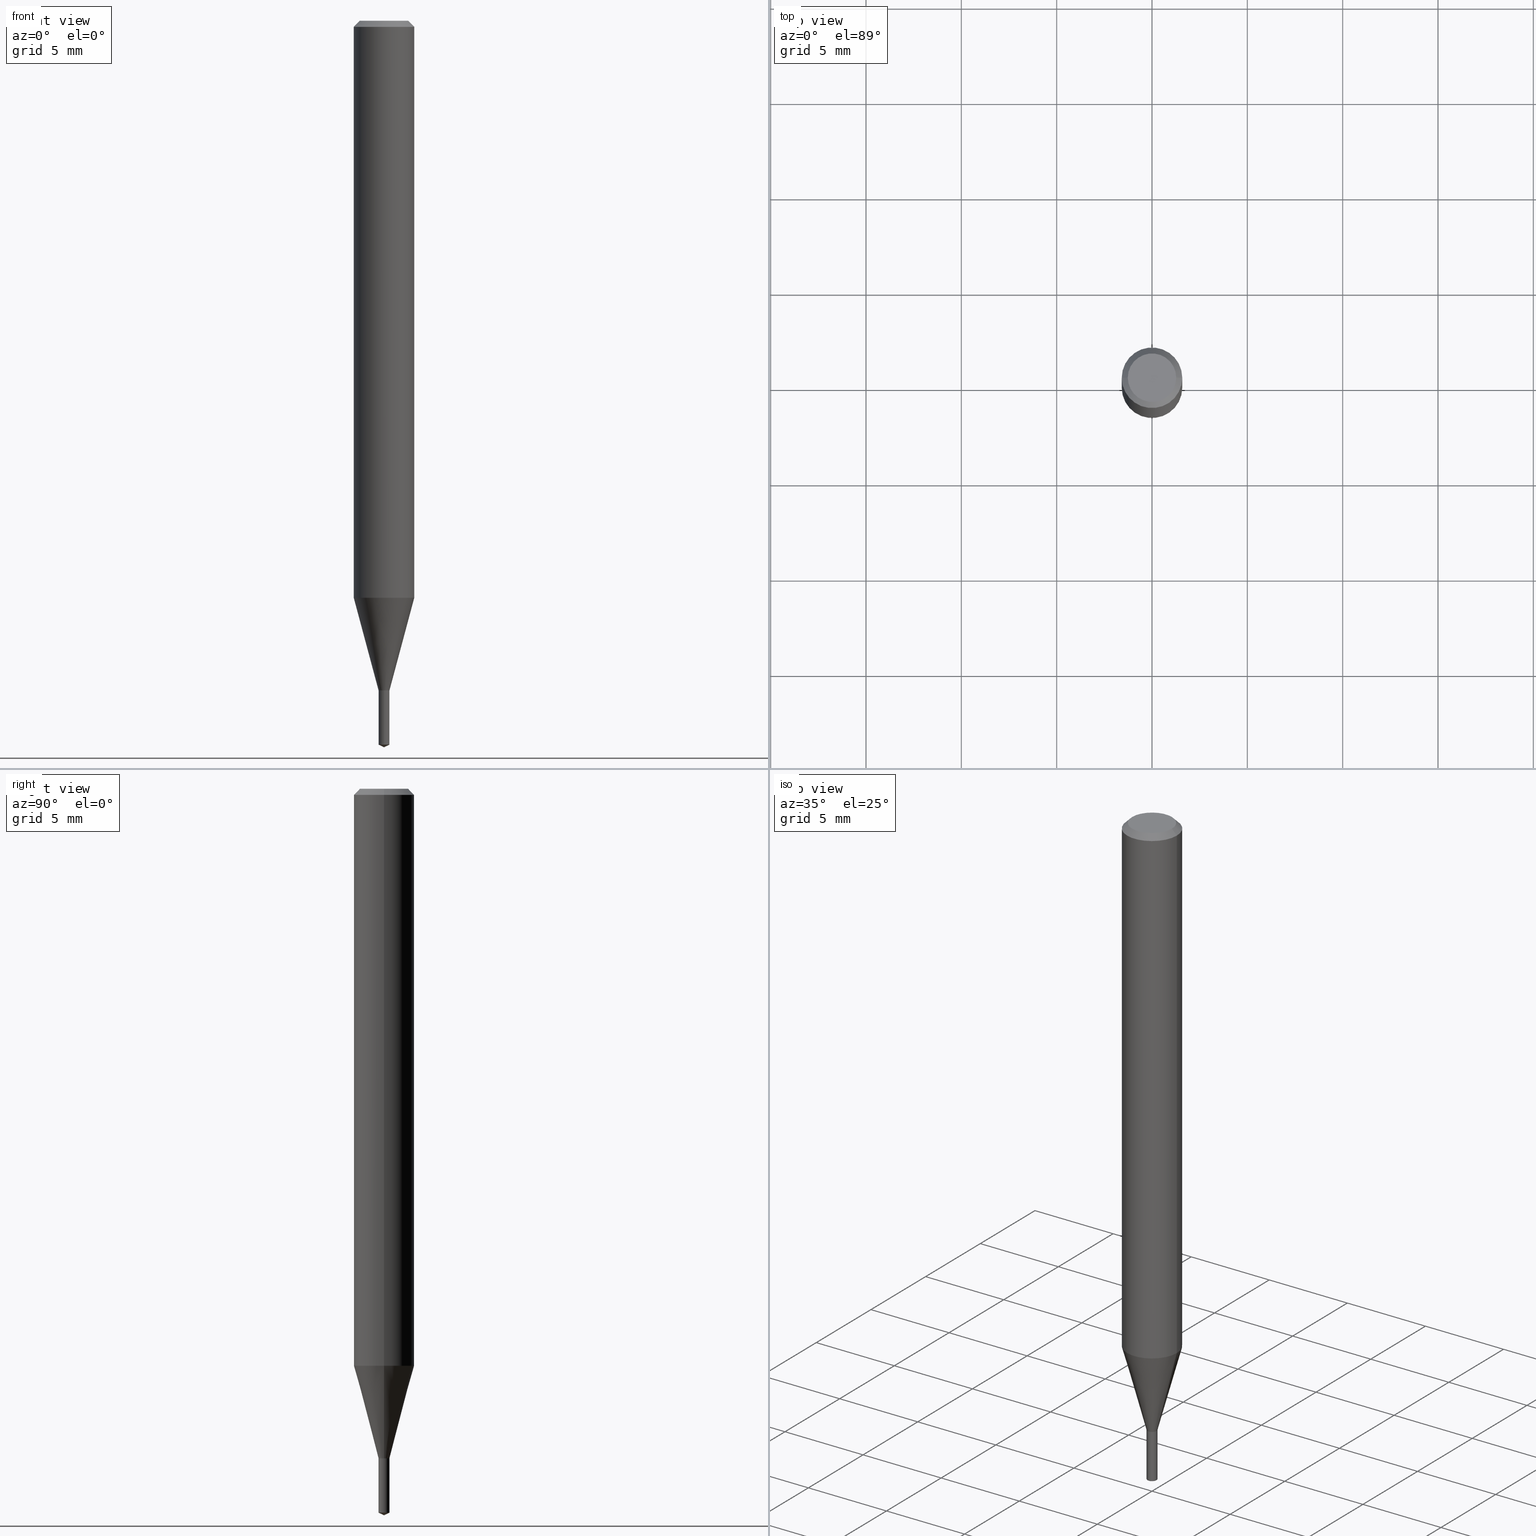
[diagram: canonical four-view strip — front | top / right | iso, engineering-drawing reading convention]
A machine part, canonical four-view strip (front | top / right | iso — engineering-drawing reading convention). The complete STEP part file that produces these views, byte-faithful:
ISO-10303-21;
HEADER;
FILE_DESCRIPTION (( 'STEP AP203' ),
    '1' );
FILE_NAME ('07128.STEP',
    '2024-04-23T19:37:20',
    ( '' ),
    ( '' ),
    'SwSTEP 2.0',
    'SolidWorks 2023',
    '' );
FILE_SCHEMA (( 'CONFIG_CONTROL_DESIGN' ));
ENDSEC;

DATA;
#1 = PRODUCT_DEFINITION_FORMATION_WITH_SPECIFIED_SOURCE ( 'ANY', '', #239, .NOT_KNOWN. ) ;
#2 = AXIS2_PLACEMENT_3D ( 'NONE', #345, #79, #148 ) ;
#3 = AXIS2_PLACEMENT_3D ( 'NONE', #112, #71, #380 ) ;
#4 = CARTESIAN_POINT ( 'NONE',  ( -8.265746106709734507E-48, 1.180129479067563789E-33, 3.380025165646692144E-19 ) ) ;
#5 = VERTEX_POINT ( 'NONE', #419 ) ;
#6 = DIRECTION ( 'NONE',  ( -2.445468806185136597E-29, 3.491481338843145583E-15, 1.000000000000000000 ) ) ;
#7 = FACE_OUTER_BOUND ( 'NONE', #415, .T. ) ;
#8 = LINE ( 'NONE', #307, #249 ) ;
#9 = DIRECTION ( 'NONE',  ( -6.982962677686265133E-15, -1.000000000000000000, 0.000000000000000000 ) ) ;
#10 = ADVANCED_FACE ( 'NONE', ( #7 ), #133, .T. ) ;
#11 = CLOSED_SHELL ( 'NONE', ( #288, #395, #474, #115, #143, #64, #416, #195, #10, #283, #91, #131 ) ) ;
#12 = CARTESIAN_POINT ( 'NONE',  ( -4.132873053354867254E-48, 5.900647395337818946E-34, 1.690012582823346072E-19 ) ) ;
#13 = LINE ( 'NONE', #272, #472 ) ;
#14 = FACE_OUTER_BOUND ( 'NONE', #39, .T. ) ;
#15 = APPROVAL_ROLE ( '' ) ;
#16 = CONICAL_SURFACE ( 'NONE', #300, 84.42940631927274353, 1.134464013796308679 ) ;
#17 = APPROVAL_ROLE ( '' ) ;
#18 = AXIS2_PLACEMENT_3D ( 'NONE', #205, #471, #58 ) ;
#19 = DATE_AND_TIME ( #202, #325 ) ;
#20 = ADVANCED_FACE ( 'NONE', ( #223 ), #78, .T. ) ;
#21 = AXIS2_PLACEMENT_3D ( 'NONE', #338, #6, #486 ) ;
#22 = ADVANCED_BREP_SHAPE_REPRESENTATION ( '07128', ( #111, #281, #184 ), #386 ) ;
#23 = DIRECTION ( 'NONE',  ( -2.445468806185136597E-29, 3.491481338843145583E-15, 1.000000000000000000 ) ) ;
#24 = DIRECTION ( 'NONE',  ( -2.445468806185136597E-29, 3.491481338843145583E-15, 1.000000000000000000 ) ) ;
#25 = PLANE ( 'NONE',  #441 ) ;
#26 = CARTESIAN_POINT ( 'NONE',  ( 3.654385508097513351E-29, -5.220321946358035129E-15, -1.494754038845756305 ) ) ;
#27 = EDGE_CURVE ( 'NONE', #70, #478, #196, .T. ) ;
#28 = VERTEX_POINT ( 'NONE', #456 ) ;
#29 = ORIENTED_EDGE ( 'NONE', *, *, #346, .F. ) ;
#30 = LINE ( 'NONE', #183, #208 ) ;
#31 = VERTEX_POINT ( 'NONE', #74 ) ;
#32 = DIRECTION ( 'NONE',  ( 1.000000000000000000, -6.982962677686266711E-15, 4.876176775795935793E-29 ) ) ;
#33 = CC_DESIGN_PERSON_AND_ORGANIZATION_ASSIGNMENT ( #129, #277, ( #1 ) ) ;
#34 = AXIS2_PLACEMENT_3D ( 'NONE', #490, #375, #255 ) ;
#35 = DIRECTION ( 'NONE',  ( -2.445468806185136597E-29, 3.491481338843145583E-15, 1.000000000000000000 ) ) ;
#36 = ORIENTED_EDGE ( 'NONE', *, *, #489, .T. ) ;
#37 = EDGE_LOOP ( 'NONE', ( #413, #107, #161 ) ) ;
#38 = ORIENTED_EDGE ( 'NONE', *, *, #378, .T. ) ;
#39 = EDGE_LOOP ( 'NONE', ( #113, #147 ) ) ;
#40 = LINE ( 'NONE', #383, #55 ) ;
#41 = CIRCLE ( 'NONE', #56, 0.01124999999999999958 ) ;
#42 = ORIENTED_EDGE ( 'NONE', *, *, #75, .T. ) ;
#43 = AXIS2_PLACEMENT_3D ( 'NONE', #253, #35, #482 ) ;
#44 = CIRCLE ( 'NONE', #34, 0.01075000000000000087 ) ;
#45 = DIRECTION ( 'NONE',  ( -2.445468806185136877E-29, 3.491481338843145188E-15, 1.000000000000000000 ) ) ;
#46 = DIRECTION ( 'NONE',  ( 6.439704144417008265E-15, 0.9063077870366490485, 0.4226182617407012732 ) ) ;
#47 = EDGE_CURVE ( 'NONE', #257, #263, #264, .T. ) ;
#48 = DIRECTION ( 'NONE',  ( -6.982962677686265133E-15, -1.000000000000000000, 0.000000000000000000 ) ) ;
#49 = AXIS2_PLACEMENT_3D ( 'NONE', #334, #399, #256 ) ;
#50 = LINE ( 'NONE', #273, #199 ) ;
#51 = EDGE_CURVE ( 'NONE', #73, #301, #13, .T. ) ;
#52 = DATE_AND_TIME ( #488, #232 ) ;
#53 = APPROVAL_STATUS ( 'not_yet_approved' ) ;
#54 = ORIENTED_EDGE ( 'NONE', *, *, #228, .T. ) ;
#55 = VECTOR ( 'NONE', #424, 39.37007874015748143 ) ;
#56 = AXIS2_PLACEMENT_3D ( 'NONE', #304, #420, #125 ) ;
#57 = PERSON_AND_ORGANIZATION_ROLE ( 'creator' ) ;
#58 = DIRECTION ( 'NONE',  ( 1.000000000000000000, -6.982962677686266711E-15, 4.876176775795935793E-29 ) ) ;
#59 = EDGE_CURVE ( 'NONE', #5, #102, #192, .T. ) ;
#60 = CARTESIAN_POINT ( 'NONE',  ( -7.855833012394210890E-17, -0.01125000000000405016, -1.160000000000000142 ) ) ;
#61 = CIRCLE ( 'NONE', #426, 0.01124999999999999958 ) ;
#62 = AXIS2_PLACEMENT_3D ( 'NONE', #168, #179, #234 ) ;
#63 = CYLINDRICAL_SURFACE ( 'NONE', #370, 0.01124999999999999958 ) ;
#64 = ADVANCED_FACE ( 'NONE', ( #331 ), #360, .F. ) ;
#65 = DIRECTION ( 'NONE',  ( -6.982962677686265133E-15, -1.000000000000000000, 0.000000000000000000 ) ) ;
#66 = ORIENTED_EDGE ( 'NONE', *, *, #299, .F. ) ;
#67 = SECURITY_CLASSIFICATION ( '', '', #287 ) ;
#68 = DIRECTION ( 'NONE',  ( 1.000000000000000000, -6.982962677686224901E-15, 0.000000000000000000 ) ) ;
#69 = ORIENTED_EDGE ( 'NONE', *, *, #423, .T. ) ;
#70 = VERTEX_POINT ( 'NONE', #190 ) ;
#71 = DIRECTION ( 'NONE',  ( -2.445468806185136597E-29, 3.491481338843145583E-15, 1.000000000000000000 ) ) ;
#72 = CONICAL_SURFACE ( 'NONE', #62, 0.06250000000000000000, 0.7853981633974452814 ) ;
#73 = VERTEX_POINT ( 'NONE', #296 ) ;
#74 = CARTESIAN_POINT ( 'NONE',  ( -0.01124999999999999958, -4.357911297963569388E-15, -1.382600000000000273 ) ) ;
#75 = EDGE_CURVE ( 'NONE', #478, #70, #258, .T. ) ;
#76 = DIRECTION ( 'NONE',  ( 1.000000000000000000, -6.982962677686265133E-15, 0.000000000000000000 ) ) ;
#77 = DIRECTION ( 'NONE',  ( -2.438088387897960049E-29, 3.491481338843145188E-15, 1.000000000000000000 ) ) ;
#78 = CYLINDRICAL_SURFACE ( 'NONE', #122, 0.01124999999999999958 ) ;
#79 = DIRECTION ( 'NONE',  ( 2.445468806185136597E-29, -3.491481338843145583E-15, -1.000000000000000000 ) ) ;
#80 = APPROVAL ( #53, 'UNSPECIFIED' ) ;
#81 = APPROVAL_PERSON_ORGANIZATION ( #389, #314, #384 ) ;
#82 = DIRECTION ( 'NONE',  ( 1.000000000000000000, -6.982962677686270655E-15, 0.000000000000000000 ) ) ;
#83 = AXIS2_PLACEMENT_3D ( 'NONE', #367, #181, #483 ) ;
#84 = PLANE ( 'NONE',  #317 ) ;
#85 = LINE ( 'NONE', #262, #189 ) ;
#86 = APPLICATION_PROTOCOL_DEFINITION ( 'international standard', 'config_control_design', 1994, #319 ) ;
#87 = ADVANCED_FACE ( 'NONE', ( #244 ), #63, .T. ) ;
#88 = FACE_OUTER_BOUND ( 'NONE', #180, .T. ) ;
#89 = CARTESIAN_POINT ( 'NONE',  ( 3.663772194095157954E-29, -5.243567474203848232E-15, -1.500000000000000222 ) ) ;
#90 = DIRECTION ( 'NONE',  ( 1.000000000000000000, -6.982962677686266711E-15, 4.876176775795935793E-29 ) ) ;
#91 = ADVANCED_FACE ( 'NONE', ( #293 ), #25, .F. ) ;
#92 = AXIS2_PLACEMENT_3D ( 'NONE', #294, #397, #366 ) ;
#93 = CC_DESIGN_APPROVAL ( #462, ( #1 ) ) ;
#94 = LINE ( 'NONE', #479, #465 ) ;
#95 = CARTESIAN_POINT ( 'NONE',  ( 0.06250000000000000000, -4.724246415962602840E-16, -0.01250000000000008223 ) ) ;
#96 = ORIENTED_EDGE ( 'NONE', *, *, #59, .F. ) ;
#97 = CONICAL_SURFACE ( 'NONE', #200, 0.01075000000000000087, 0.7853981633974119747 ) ;
#98 = CARTESIAN_POINT ( 'NONE',  ( -8.265746106709734507E-48, 1.180129479067563789E-33, 3.380025165646692144E-19 ) ) ;
#99 = ORIENTED_EDGE ( 'NONE', *, *, #406, .F. ) ;
#100 = ORIENTED_EDGE ( 'NONE', *, *, #27, .F. ) ;
#101 = CARTESIAN_POINT ( 'NONE',  ( -0.06250000000000000000, -1.657489963210050197E-15, -0.01250000000000008223 ) ) ;
#102 = VERTEX_POINT ( 'NONE', #447 ) ;
#103 = CC_DESIGN_PERSON_AND_ORGANIZATION_ASSIGNMENT ( #279, #429, ( #239 ) ) ;
#104 = APPROVAL_PERSON_ORGANIZATION ( #322, #462, #15 ) ;
#105 = ORIENTED_EDGE ( 'NONE', *, *, #75, .F. ) ;
#106 = FACE_OUTER_BOUND ( 'NONE', #372, .T. ) ;
#107 = ORIENTED_EDGE ( 'NONE', *, *, #51, .T. ) ;
#108 = ORIENTED_EDGE ( 'NONE', *, *, #434, .T. ) ;
#109 = ORIENTED_EDGE ( 'NONE', *, *, #136, .T. ) ;
#110 = ORIENTED_EDGE ( 'NONE', *, *, #155, .T. ) ;
#111 = MANIFOLD_SOLID_BREP ( 'Body-Move/Copy2[1]', #354 ) ;
#112 = CARTESIAN_POINT ( 'NONE',  ( 3.056836007731440977E-31, -4.364351673553961068E-17, -0.01250000000000008223 ) ) ;
#113 = ORIENTED_EDGE ( 'NONE', *, *, #355, .T. ) ;
#114 = DIRECTION ( 'NONE',  ( -2.445468806185136877E-29, 3.491481338843145188E-15, 1.000000000000000000 ) ) ;
#115 = ADVANCED_FACE ( 'NONE', ( #137 ), #326, .T. ) ;
#116 = ORIENTED_EDGE ( 'NONE', *, *, #434, .F. ) ;
#117 = ORIENTED_EDGE ( 'NONE', *, *, #312, .F. ) ;
#118 = CARTESIAN_POINT ( 'NONE',  ( -0.01075000000000000087, -3.971085781789727760E-15, -1.160000000000000142 ) ) ;
#119 = FACE_OUTER_BOUND ( 'NONE', #449, .T. ) ;
#120 = AXIS2_PLACEMENT_3D ( 'NONE', #438, #435, #236 ) ;
#121 = VERTEX_POINT ( 'NONE', #171 ) ;
#122 = AXIS2_PLACEMENT_3D ( 'NONE', #356, #303, #48 ) ;
#123 = CC_DESIGN_PERSON_AND_ORGANIZATION_ASSIGNMENT ( #284, #328, ( #67 ) ) ;
#124 = CIRCLE ( 'NONE', #276, 0.04999999999999999584 ) ;
#125 = DIRECTION ( 'NONE',  ( 1.000000000000000000, -6.982962677686224901E-15, 0.000000000000000000 ) ) ;
#126 = ORIENTED_EDGE ( 'NONE', *, *, #430, .T. ) ;
#127 = DIRECTION ( 'NONE',  ( -2.445468806185136597E-29, 3.491481338843145583E-15, 1.000000000000000000 ) ) ;
#128 = VECTOR ( 'NONE', #45, 39.37007874015748143 ) ;
#129 = PERSON_AND_ORGANIZATION ( #475, #145 ) ;
#130 = CARTESIAN_POINT ( 'NONE',  ( -0.06250000000000013878, -3.715425619534625420E-15, -1.191332396112100511 ) ) ;
#131 = ADVANCED_FACE ( 'NONE', ( #347 ), #450, .T. ) ;
#132 = VERTEX_POINT ( 'NONE', #101 ) ;
#133 = CONICAL_SURFACE ( 'NONE', #2, 0.06250000000000000000, 0.7853981633974452814 ) ;
#134 = COORDINATED_UNIVERSAL_TIME_OFFSET ( 5, 0, .BEHIND. ) ;
#135 =( NAMED_UNIT ( * ) PLANE_ANGLE_UNIT ( ) SI_UNIT ( $, .RADIAN. ) );
#136 = EDGE_CURVE ( 'NONE', #242, #149, #61, .T. ) ;
#137 = FACE_OUTER_BOUND ( 'NONE', #175, .T. ) ;
#138 = VECTOR ( 'NONE', #250, 39.37007874015748143 ) ;
#139 = DIRECTION ( 'NONE',  ( -2.442514796063438542E-29, 3.495711649469232155E-15, 1.000000000000000000 ) ) ;
#140 = FACE_OUTER_BOUND ( 'NONE', #261, .T. ) ;
#141 = ORIENTED_EDGE ( 'NONE', *, *, #222, .T. ) ;
#142 = ORIENTED_EDGE ( 'NONE', *, *, #186, .F. ) ;
#143 = ADVANCED_FACE ( 'NONE', ( #119 ), #437, .F. ) ;
#144 = EDGE_LOOP ( 'NONE', ( #444, #405, #206, #403 ) ) ;
#145 = ORGANIZATION ( 'UNSPECIFIED', 'UNSPECIFIED', '' ) ;
#146 = DIRECTION ( 'NONE',  ( 1.000000000000000000, -6.982962677686265922E-15, 4.876194921942043128E-29 ) ) ;
#147 = ORIENTED_EDGE ( 'NONE', *, *, #299, .T. ) ;
#148 = DIRECTION ( 'NONE',  ( -1.000000000000000000, 6.982962677686266711E-15, 0.000000000000000000 ) ) ;
#149 = VERTEX_POINT ( 'NONE', #60 ) ;
#150 = CC_DESIGN_DATE_AND_TIME_ASSIGNMENT ( #52, #309, ( #67 ) ) ;
#151 = ORIENTED_EDGE ( 'NONE', *, *, #240, .F. ) ;
#152 = APPLICATION_CONTEXT ( 'configuration controlled 3d designs of mechanical parts and assemblies' ) ;
#153 = FACE_OUTER_BOUND ( 'NONE', #37, .T. ) ;
#154 = ORIENTED_EDGE ( 'NONE', *, *, #240, .T. ) ;
#155 = EDGE_CURVE ( 'NONE', #214, #102, #94, .T. ) ;
#156 = ORIENTED_EDGE ( 'NONE', *, *, #387, .T. ) ;
#157 = DATE_AND_TIME ( #473, #282 ) ;
#158 = DIRECTION ( 'NONE',  ( -6.982962677686266711E-15, -1.000000000000000000, 3.520397390770520529E-15 ) ) ;
#159 = CALENDAR_DATE ( 2024, 23, 4 ) ;
#160 = DIRECTION ( 'NONE',  ( -2.442514796063438262E-29, 3.495711649469231760E-15, 1.000000000000000000 ) ) ;
#161 = ORIENTED_EDGE ( 'NONE', *, *, #222, .F. ) ;
#162 = AXIS2_PLACEMENT_3D ( 'NONE', #174, #407, #330 ) ;
#163 = LENGTH_MEASURE_WITH_UNIT ( LENGTH_MEASURE( 0.02539999999999999897 ), #235 );
#164 = CC_DESIGN_PERSON_AND_ORGANIZATION_ASSIGNMENT ( #286, #57, ( #460 ) ) ;
#165 = COORDINATED_UNIVERSAL_TIME_OFFSET ( 5, 0, .BEHIND. ) ;
#166 = FACE_OUTER_BOUND ( 'NONE', #454, .T. ) ;
#167 = DATE_TIME_ROLE ( 'creation_date' ) ;
#168 = CARTESIAN_POINT ( 'NONE',  ( 3.056836007731440977E-31, -4.364351673553961068E-17, -0.01250000000000008223 ) ) ;
#169 = EDGE_CURVE ( 'NONE', #263, #102, #245, .T. ) ;
#170 = CARTESIAN_POINT ( 'NONE',  ( 0.000000000000000000, 0.000000000000000000, 0.000000000000000000 ) ) ;
#171 = CARTESIAN_POINT ( 'NONE',  ( -7.855833012393393679E-17, -0.01125000000000522284, -1.494754038845756305 ) ) ;
#172 = MECHANICAL_CONTEXT ( 'NONE', #152, 'mechanical' ) ;
#173 = DIRECTION ( 'NONE',  ( -2.445468806185136597E-29, 3.491481338843145583E-15, 1.000000000000000000 ) ) ;
#174 = CARTESIAN_POINT ( 'NONE',  ( 3.654385508097513351E-29, -5.220321946358035129E-15, -1.494754038845756305 ) ) ;
#175 = EDGE_LOOP ( 'NONE', ( #469, #212, #100, #298 ) ) ;
#176 = CARTESIAN_POINT ( 'NONE',  ( 2.836743815174758520E-29, -4.050118353058049996E-15, -1.160000000000000142 ) ) ;
#177 = DIRECTION ( 'NONE',  ( -2.442514796063438542E-29, 3.495711649469232155E-15, 1.000000000000000000 ) ) ;
#178 = EDGE_LOOP ( 'NONE', ( #400, #376, #29, #259 ) ) ;
#179 = DIRECTION ( 'NONE',  ( 2.445468806185136597E-29, -3.491481338843145583E-15, -1.000000000000000000 ) ) ;
#180 = EDGE_LOOP ( 'NONE', ( #66, #54, #126, #99 ) ) ;
#181 = DIRECTION ( 'NONE',  ( -2.445468806185136597E-29, 3.491481338843145583E-15, 1.000000000000000000 ) ) ;
#182 = ORIENTED_EDGE ( 'NONE', *, *, #27, .T. ) ;
#183 = CARTESIAN_POINT ( 'NONE',  ( -0.06250000000000000000, 3.927916506198521080E-16, -0.01250000000000008223 ) ) ;
#184 = AXIS2_PLACEMENT_3D ( 'NONE', #170, #207, #363 ) ;
#185 = CIRCLE ( 'NONE', #358, 0.04999999999999999584 ) ;
#186 = EDGE_CURVE ( 'NONE', #132, #28, #398, .T. ) ;
#187 = ORIENTED_EDGE ( 'NONE', *, *, #251, .T. ) ;
#188 = PLANE ( 'NONE',  #361 ) ;
#189 = VECTOR ( 'NONE', #160, 39.37007874015748143 ) ;
#190 = CARTESIAN_POINT ( 'NONE',  ( 0.06250000000000013878, -4.595949996740082072E-15, -1.191332396112100511 ) ) ;
#191 = LINE ( 'NONE', #318, #484 ) ;
#192 = LINE ( 'NONE', #349, #128 ) ;
#193 = CARTESIAN_POINT ( 'NONE',  ( -0.01124999999999999958, 7.993605777301126795E-17, -5.533801976536768899E-31 ) ) ;
#194 = DIRECTION ( 'NONE',  ( -2.445468806185136877E-29, 3.491481338843145188E-15, 1.000000000000000000 ) ) ;
#195 = ADVANCED_FACE ( 'NONE', ( #359 ), #401, .T. ) ;
#196 = CIRCLE ( 'NONE', #394, 0.06250000000000013878 ) ;
#197 = DIRECTION ( 'NONE',  ( -2.445468806185136597E-29, 3.491481338843145583E-15, 1.000000000000000000 ) ) ;
#198 = EDGE_CURVE ( 'NONE', #214, #257, #44, .T. ) ;
#199 = VECTOR ( 'NONE', #194, 39.37007874015748143 ) ;
#200 = AXIS2_PLACEMENT_3D ( 'NONE', #382, #127, #76 ) ;
#201 = DIRECTION ( 'NONE',  ( -2.445468806185136597E-29, 3.491481338843145583E-15, 1.000000000000000000 ) ) ;
#202 = CALENDAR_DATE ( 2024, 23, 4 ) ;
#203 = DIRECTION ( 'NONE',  ( -6.328713451373353601E-15, -0.9063077870366461619, 0.4226182617407076014 ) ) ;
#204 = DIRECTION ( 'NONE',  ( -2.445468806185136597E-29, 3.491481338843145583E-15, 1.000000000000000000 ) ) ;
#205 = CARTESIAN_POINT ( 'NONE',  ( 0.000000000000000000, 0.000000000000000000, 0.000000000000000000 ) ) ;
#206 = ORIENTED_EDGE ( 'NONE', *, *, #59, .T. ) ;
#207 = DIRECTION ( 'NONE',  ( 0.000000000000000000, 0.000000000000000000, 1.000000000000000000 ) ) ;
#208 = VECTOR ( 'NONE', #396, 39.37007874015748143 ) ;
#209 = ORIENTED_EDGE ( 'NONE', *, *, #169, .F. ) ;
#210 = PRODUCT_DEFINITION_SHAPE ( 'NONE', 'NONE',  #460 ) ;
#211 = CALENDAR_DATE ( 2024, 23, 4 ) ;
#212 = ORIENTED_EDGE ( 'NONE', *, *, #275, .T. ) ;
#213 = DIRECTION ( 'NONE',  ( -2.445468806185136597E-29, 3.491481338843145583E-15, 1.000000000000000000 ) ) ;
#214 = VERTEX_POINT ( 'NONE', #480 ) ;
#215 = DESIGN_CONTEXT ( 'detailed design', #319, 'design' ) ;
#216 = ORIENTED_EDGE ( 'NONE', *, *, #228, .F. ) ;
#217 = AXIS2_PLACEMENT_3D ( 'NONE', #392, #201, #327 ) ;
#218 = CONICAL_SURFACE ( 'NONE', #343, 0.01124999999999999958, 0.2617993877991569573 ) ;
#219 = CARTESIAN_POINT ( 'NONE',  ( -0.01075000000000000087, -3.973735008963838961E-15, -1.160000000000000142 ) ) ;
#220 = DATE_AND_TIME ( #159, #274 ) ;
#221 = CARTESIAN_POINT ( 'NONE',  ( 7.993605777304787603E-17, 0.01124999999999594900, -1.160000000000000142 ) ) ;
#222 = EDGE_CURVE ( 'NONE', #121, #301, #231, .T. ) ;
#223 = FACE_OUTER_BOUND ( 'NONE', #487, .T. ) ;
#224 = CARTESIAN_POINT ( 'NONE',  ( 0.04999999999999999584, -4.077247707424184212E-16, 3.380025165673154903E-19 ) ) ;
#225 = AXIS2_PLACEMENT_3D ( 'NONE', #369, #23, #402 ) ;
#226 = VECTOR ( 'NONE', #265, 39.37007874015748854 ) ;
#227 = ORIENTED_EDGE ( 'NONE', *, *, #339, .F. ) ;
#228 = EDGE_CURVE ( 'NONE', #252, #28, #476, .T. ) ;
#229 = CARTESIAN_POINT ( 'NONE',  ( -9.249480099918094755E-28, 1.323877825786118664E-13, 37.87007874015748143 ) ) ;
#230 = PERSON_AND_ORGANIZATION ( #475, #145 ) ;
#231 = CIRCLE ( 'NONE', #162, 0.01125000000000000132 ) ;
#232 = LOCAL_TIME ( 15, 37, 20.00000000000000000, #414 ) ;
#233 = VECTOR ( 'NONE', #381, 39.37007874015748143 ) ;
#234 = DIRECTION ( 'NONE',  ( -1.000000000000000000, 6.982962677686266711E-15, 0.000000000000000000 ) ) ;
#235 =( LENGTH_UNIT ( ) NAMED_UNIT ( * ) SI_UNIT ( $, .METRE. ) );
#236 = DIRECTION ( 'NONE',  ( 1.000000000000000000, -6.982962677686269077E-15, 0.000000000000000000 ) ) ;
#237 =( CONVERSION_BASED_UNIT ( 'INCH', #163 ) LENGTH_UNIT ( ) NAMED_UNIT ( #371 ) );
#238 = CARTESIAN_POINT ( 'NONE',  ( 0.000000000000000000, 0.000000000000000000, 0.000000000000000000 ) ) ;
#239 = PRODUCT ( '07128', '07128', '', ( #172 ) ) ;
#240 = EDGE_CURVE ( 'NONE', #31, #5, #41, .T. ) ;
#241 = PERSON_AND_ORGANIZATION_ROLE ( 'creator' ) ;
#242 = VERTEX_POINT ( 'NONE', #221 ) ;
#243 = EDGE_LOOP ( 'NONE', ( #116, #348, #69, #451 ) ) ;
#244 = FACE_OUTER_BOUND ( 'NONE', #243, .T. ) ;
#245 = CIRCLE ( 'NONE', #120, 0.01124999999999999958 ) ;
#246 = DIRECTION ( 'NONE',  ( -2.442514796063438542E-29, 3.495711649469232155E-15, 1.000000000000000000 ) ) ;
#247 = CC_DESIGN_APPROVAL ( #80, ( #460 ) ) ;
#248 = AXIS2_PLACEMENT_3D ( 'NONE', #238, #173, #90 ) ;
#249 = VECTOR ( 'NONE', #270, 39.37007874015748854 ) ;
#250 = DIRECTION ( 'NONE',  ( 0.7071067811865453523, -7.319954787623248157E-15, -0.7071067811865496822 ) ) ;
#251 = EDGE_CURVE ( 'NONE', #478, #132, #40, .T. ) ;
#252 = VERTEX_POINT ( 'NONE', #224 ) ;
#253 = CARTESIAN_POINT ( 'NONE',  ( 2.913366212489936565E-29, -4.159514829384688825E-15, -1.191332396112100511 ) ) ;
#254 = EDGE_LOOP ( 'NONE', ( #408, #36, #227 ) ) ;
#255 = DIRECTION ( 'NONE',  ( 1.000000000000000000, -6.982962677686265133E-15, 0.000000000000000000 ) ) ;
#256 = DIRECTION ( 'NONE',  ( 1.000000000000000000, -6.982962677686266711E-15, 4.876176775795935793E-29 ) ) ;
#257 = VERTEX_POINT ( 'NONE', #118 ) ;
#258 = CIRCLE ( 'NONE', #43, 0.06250000000000013878 ) ;
#259 = ORIENTED_EDGE ( 'NONE', *, *, #155, .F. ) ;
#260 = DATE_AND_TIME ( #211, #336 ) ;
#261 = EDGE_LOOP ( 'NONE', ( #295, #154, #156, #105 ) ) ;
#262 = CARTESIAN_POINT ( 'NONE',  ( -7.855833012394210890E-17, -0.01125000000000405016, -1.160000000000000142 ) ) ;
#263 = VERTEX_POINT ( 'NONE', #311 ) ;
#264 = LINE ( 'NONE', #219, #233 ) ;
#265 = DIRECTION ( 'NONE',  ( -0.2588190451025279559, 5.211531920934590485E-15, 0.9659258262890662028 ) ) ;
#266 = AXIS2_PLACEMENT_3D ( 'NONE', #468, #24, #280 ) ;
#267 = ORIENTED_EDGE ( 'NONE', *, *, #251, .F. ) ;
#268 = CIRCLE ( 'NONE', #217, 0.01075000000000000087 ) ;
#269 = EDGE_CURVE ( 'NONE', #70, #28, #50, .T. ) ;
#270 = DIRECTION ( 'NONE',  ( 0.2588190451025279559, 1.565188264969568522E-15, 0.9659258262890662028 ) ) ;
#271 = APPROVAL_STATUS ( 'not_yet_approved' ) ;
#272 = CARTESIAN_POINT ( 'NONE',  ( 3.670685592959361419E-29, -5.233753153551328458E-15, -1.500000000000000222 ) ) ;
#273 = CARTESIAN_POINT ( 'NONE',  ( 0.06250000000000006939, -4.364351673553921624E-16, 3.047610484872463374E-30 ) ) ;
#274 = LOCAL_TIME ( 15, 37, 20.00000000000000000, #425 ) ;
#275 = EDGE_CURVE ( 'NONE', #31, #478, #342, .T. ) ;
#276 = AXIS2_PLACEMENT_3D ( 'NONE', #98, #204, #289 ) ;
#277 = PERSON_AND_ORGANIZATION_ROLE ( 'design_supplier' ) ;
#278 = ORIENTED_EDGE ( 'NONE', *, *, #466, .T. ) ;
#279 = PERSON_AND_ORGANIZATION ( #475, #145 ) ;
#280 = DIRECTION ( 'NONE',  ( 1.000000000000000000, -6.982962677686266711E-15, 0.000000000000000000 ) ) ;
#281 = MANIFOLD_SOLID_BREP ( 'Body-Move/Copy2[2]', #11 ) ;
#282 = LOCAL_TIME ( 15, 37, 20.00000000000000000, #134 ) ;
#283 = ADVANCED_FACE ( 'NONE', ( #14 ), #84, .F. ) ;
#284 = PERSON_AND_ORGANIZATION ( #475, #145 ) ;
#285 = APPROVAL_DATE_TIME ( #157, #462 ) ;
#286 = PERSON_AND_ORGANIZATION ( #475, #145 ) ;
#287 = SECURITY_CLASSIFICATION_LEVEL ( 'unclassified' ) ;
#288 = ADVANCED_FACE ( 'NONE', ( #302 ), #97, .T. ) ;
#289 = DIRECTION ( 'NONE',  ( 1.000000000000000000, -6.982962677686265922E-15, 4.876194921942043128E-29 ) ) ;
#290 = VECTOR ( 'NONE', #114, 39.37007874015748143 ) ;
#291 = AXIS2_PLACEMENT_3D ( 'NONE', #26, #177, #65 ) ;
#292 = DIRECTION ( 'NONE',  ( 0.7071067811865218156, -2.468850131081987665E-15, 0.7071067811865732189 ) ) ;
#293 = FACE_OUTER_BOUND ( 'NONE', #379, .T. ) ;
#294 = CARTESIAN_POINT ( 'NONE',  ( 3.381105171431570264E-29, -4.827322099084534150E-15, -1.382600000000000273 ) ) ;
#295 = ORIENTED_EDGE ( 'NONE', *, *, #275, .F. ) ;
#296 = CARTESIAN_POINT ( 'NONE',  ( 3.663772194095157954E-29, -5.243567474203848232E-15, -1.500000000000000222 ) ) ;
#297 = ORIENTED_EDGE ( 'NONE', *, *, #312, .T. ) ;
#298 = ORIENTED_EDGE ( 'NONE', *, *, #387, .F. ) ;
#299 = EDGE_CURVE ( 'NONE', #252, #422, #185, .T. ) ;
#300 = AXIS2_PLACEMENT_3D ( 'NONE', #229, #246, #158 ) ;
#301 = VERTEX_POINT ( 'NONE', #350 ) ;
#302 = FACE_OUTER_BOUND ( 'NONE', #178, .T. ) ;
#303 = DIRECTION ( 'NONE',  ( -2.442514796063438542E-29, 3.495711649469232155E-15, 1.000000000000000000 ) ) ;
#304 = CARTESIAN_POINT ( 'NONE',  ( 3.381105171431570264E-29, -4.827322099084534150E-15, -1.382600000000000273 ) ) ;
#305 = DIRECTION ( 'NONE',  ( -2.442514796063438542E-29, 3.495711649469232155E-15, 1.000000000000000000 ) ) ;
#306 = CC_DESIGN_DATE_AND_TIME_ASSIGNMENT ( #19, #167, ( #460 ) ) ;
#307 = CARTESIAN_POINT ( 'NONE',  ( 0.01124999999999999958, -4.905880429208504178E-15, -1.382600000000000273 ) ) ;
#308 = DIRECTION ( 'NONE',  ( 2.438088387897960049E-29, -3.491481338843145188E-15, -1.000000000000000000 ) ) ;
#309 = DATE_TIME_ROLE ( 'classification_date' ) ;
#310 = DIRECTION ( 'NONE',  ( 2.442514796063438262E-29, -3.495711649469231760E-15, -1.000000000000000000 ) ) ;
#311 = CARTESIAN_POINT ( 'NONE',  ( -0.01124999999999999958, -4.357911297963569388E-15, -1.159500000000000197 ) ) ;
#312 = EDGE_CURVE ( 'NONE', #149, #242, #481, .T. ) ;
#313 = PERSON_AND_ORGANIZATION ( #475, #145 ) ;
#314 = APPROVAL ( #271, 'UNSPECIFIED' ) ;
#315 = AXIS2_PLACEMENT_3D ( 'NONE', #461, #452, #9 ) ;
#316 = CC_DESIGN_APPROVAL ( #314, ( #67 ) ) ;
#317 = AXIS2_PLACEMENT_3D ( 'NONE', #12, #308, #463 ) ;
#318 = CARTESIAN_POINT ( 'NONE',  ( 7.993605777303962997E-17, 0.01124999999999594900, -1.160000000000000142 ) ) ;
#319 = APPLICATION_CONTEXT ( 'configuration controlled 3d designs of mechanical parts and assemblies' ) ;
#320 = CYLINDRICAL_SURFACE ( 'NONE', #18, 0.06250000000000006939 ) ;
#321 = ADVANCED_FACE ( 'NONE', ( #153 ), #16, .T. ) ;
#322 = PERSON_AND_ORGANIZATION ( #475, #145 ) ;
#323 = CARTESIAN_POINT ( 'NONE',  ( 3.381105171431570264E-29, -4.827322099084534150E-15, -1.382600000000000273 ) ) ;
#324 =( NAMED_UNIT ( * ) SI_UNIT ( $, .STERADIAN. ) SOLID_ANGLE_UNIT ( ) );
#325 = LOCAL_TIME ( 15, 37, 20.00000000000000000, #165 ) ;
#326 = CONICAL_SURFACE ( 'NONE', #225, 0.01124999999999999958, 0.2617993877991569573 ) ;
#327 = DIRECTION ( 'NONE',  ( 1.000000000000000000, -6.982962677686265133E-15, 0.000000000000000000 ) ) ;
#328 = PERSON_AND_ORGANIZATION_ROLE ( 'classification_officer' ) ;
#329 = EDGE_CURVE ( 'NONE', #5, #31, #335, .T. ) ;
#330 = DIRECTION ( 'NONE',  ( -6.982962677686265133E-15, -1.000000000000000000, 0.000000000000000000 ) ) ;
#331 = FACE_OUTER_BOUND ( 'NONE', #144, .T. ) ;
#332 = ORIENTED_EDGE ( 'NONE', *, *, #406, .T. ) ;
#333 = CC_DESIGN_PERSON_AND_ORGANIZATION_ASSIGNMENT ( #313, #241, ( #1 ) ) ;
#334 = CARTESIAN_POINT ( 'NONE',  ( 0.000000000000000000, 0.000000000000000000, 0.000000000000000000 ) ) ;
#335 = CIRCLE ( 'NONE', #92, 0.01124999999999999958 ) ;
#336 = LOCAL_TIME ( 15, 37, 20.00000000000000000, #467 ) ;
#337 = DIRECTION ( 'NONE',  ( -2.442514796063438542E-29, 3.495711649469232155E-15, 1.000000000000000000 ) ) ;
#338 = CARTESIAN_POINT ( 'NONE',  ( 2.836743815174758520E-29, -4.050118353058049996E-15, -1.160000000000000142 ) ) ;
#339 = EDGE_CURVE ( 'NONE', #301, #121, #393, .T. ) ;
#340 = ORIENTED_EDGE ( 'NONE', *, *, #186, .T. ) ;
#341 = CC_DESIGN_SECURITY_CLASSIFICATION ( #67, ( #1 ) ) ;
#342 = LINE ( 'NONE', #353, #226 ) ;
#343 = AXIS2_PLACEMENT_3D ( 'NONE', #323, #411, #68 ) ;
#344 = CARTESIAN_POINT ( 'NONE',  ( 2.836743815174758520E-29, -4.050118353058049996E-15, -1.160000000000000142 ) ) ;
#345 = CARTESIAN_POINT ( 'NONE',  ( 3.056836007731440977E-31, -4.364351673553961068E-17, -0.01250000000000008223 ) ) ;
#346 = EDGE_CURVE ( 'NONE', #102, #263, #458, .T. ) ;
#347 = FACE_OUTER_BOUND ( 'NONE', #404, .T. ) ;
#348 = ORIENTED_EDGE ( 'NONE', *, *, #339, .T. ) ;
#349 = CARTESIAN_POINT ( 'NONE',  ( 0.01124999999999999958, -7.855833012397049556E-17, 5.485698872770427417E-31 ) ) ;
#350 = CARTESIAN_POINT ( 'NONE',  ( 7.993605777304781440E-17, 0.01124999999999477980, -1.494754038845756305 ) ) ;
#351 = PRODUCT_RELATED_PRODUCT_CATEGORY ( 'detail', '', ( #239 ) ) ;
#352 = DIRECTION ( 'NONE',  ( -2.445468806185136597E-29, 3.491481338843145583E-15, 1.000000000000000000 ) ) ;
#353 = CARTESIAN_POINT ( 'NONE',  ( -0.01124999999999999958, -4.747386041311522217E-15, -1.382600000000000273 ) ) ;
#354 = CLOSED_SHELL ( 'NONE', ( #20, #321, #391, #87, #362 ) ) ;
#355 = EDGE_CURVE ( 'NONE', #422, #252, #124, .T. ) ;
#356 = CARTESIAN_POINT ( 'NONE',  ( 2.836743815174758520E-29, -4.050118353058049996E-15, -1.160000000000000142 ) ) ;
#357 = LINE ( 'NONE', #89, #418 ) ;
#358 = AXIS2_PLACEMENT_3D ( 'NONE', #4, #197, #146 ) ;
#359 = FACE_OUTER_BOUND ( 'NONE', #390, .T. ) ;
#360 = CYLINDRICAL_SURFACE ( 'NONE', #49, 0.01124999999999999958 ) ;
#361 = AXIS2_PLACEMENT_3D ( 'NONE', #344, #310, #388 ) ;
#362 = ADVANCED_FACE ( 'NONE', ( #106 ), #188, .F. ) ;
#363 = DIRECTION ( 'NONE',  ( 1.000000000000000000, 0.000000000000000000, 0.000000000000000000 ) ) ;
#364 = FACE_OUTER_BOUND ( 'NONE', #254, .T. ) ;
#365 = DIRECTION ( 'NONE',  ( -6.982962677686265133E-15, -1.000000000000000000, 0.000000000000000000 ) ) ;
#366 = DIRECTION ( 'NONE',  ( 1.000000000000000000, -6.982962677686224901E-15, 0.000000000000000000 ) ) ;
#367 = CARTESIAN_POINT ( 'NONE',  ( 2.835521080771666279E-29, -4.048372612388627704E-15, -1.159500000000000197 ) ) ;
#368 = ORIENTED_EDGE ( 'NONE', *, *, #198, .F. ) ;
#369 = CARTESIAN_POINT ( 'NONE',  ( 3.381105171431570264E-29, -4.827322099084534150E-15, -1.382600000000000273 ) ) ;
#370 = AXIS2_PLACEMENT_3D ( 'NONE', #442, #139, #365 ) ;
#371 = DIMENSIONAL_EXPONENTS ( 1.000000000000000000, 0.000000000000000000, 0.000000000000000000, 0.000000000000000000, 0.000000000000000000, 0.000000000000000000, 0.000000000000000000 ) ;
#372 = EDGE_LOOP ( 'NONE', ( #297, #109 ) ) ;
#373 = ORIENTED_EDGE ( 'NONE', *, *, #423, .F. ) ;
#374 = APPROVAL_DATE_TIME ( #260, #80 ) ;
#375 = DIRECTION ( 'NONE',  ( -2.445468806185136597E-29, 3.491481338843145583E-15, 1.000000000000000000 ) ) ;
#376 = ORIENTED_EDGE ( 'NONE', *, *, #47, .T. ) ;
#377 = CONICAL_SURFACE ( 'NONE', #428, 84.42940631927274353, 1.134464013796308679 ) ;
#378 = EDGE_CURVE ( 'NONE', #31, #263, #455, .T. ) ;
#379 = EDGE_LOOP ( 'NONE', ( #368, #439 ) ) ;
#380 = DIRECTION ( 'NONE',  ( 1.000000000000000000, -6.982962677686266711E-15, 0.000000000000000000 ) ) ;
#381 = DIRECTION ( 'NONE',  ( -0.7071067811865218156, 7.493145998870261075E-15, 0.7071067811865732189 ) ) ;
#382 = CARTESIAN_POINT ( 'NONE',  ( 2.836743815174758520E-29, -4.050118353058049996E-15, -1.160000000000000142 ) ) ;
#383 = CARTESIAN_POINT ( 'NONE',  ( -0.06250000000000006939, 4.440892098500631092E-16, -3.074334431409319267E-30 ) ) ;
#384 = APPROVAL_ROLE ( '' ) ;
#385 = CARTESIAN_POINT ( 'NONE',  ( 2.913366212489936565E-29, -4.159514829384688825E-15, -1.191332396112100511 ) ) ;
#386 =( GEOMETRIC_REPRESENTATION_CONTEXT ( 3 ) GLOBAL_UNCERTAINTY_ASSIGNED_CONTEXT ( ( #453 ) ) GLOBAL_UNIT_ASSIGNED_CONTEXT ( ( #237, #135, #324 ) ) REPRESENTATION_CONTEXT ( 'NONE', 'WORKASPACE' ) );
#387 = EDGE_CURVE ( 'NONE', #5, #70, #8, .T. ) ;
#388 = DIRECTION ( 'NONE',  ( 6.982962677686265922E-15, 1.000000000000000000, -3.495711649469231760E-15 ) ) ;
#389 = PERSON_AND_ORGANIZATION ( #475, #145 ) ;
#390 = EDGE_LOOP ( 'NONE', ( #267, #42, #410, #142 ) ) ;
#391 = ADVANCED_FACE ( 'NONE', ( #364 ), #377, .T. ) ;
#392 = CARTESIAN_POINT ( 'NONE',  ( 2.836743815174758520E-29, -4.050118353058049996E-15, -1.160000000000000142 ) ) ;
#393 = CIRCLE ( 'NONE', #291, 0.01125000000000000132 ) ;
#394 = AXIS2_PLACEMENT_3D ( 'NONE', #385, #352, #82 ) ;
#395 = ADVANCED_FACE ( 'NONE', ( #88 ), #72, .T. ) ;
#396 = DIRECTION ( 'NONE',  ( -0.7071067811865453523, 2.468850131082234184E-15, -0.7071067811865496822 ) ) ;
#397 = DIRECTION ( 'NONE',  ( -2.445468806185136597E-29, 3.491481338843145583E-15, 1.000000000000000000 ) ) ;
#398 = CIRCLE ( 'NONE', #266, 0.06250000000000000000 ) ;
#399 = DIRECTION ( 'NONE',  ( -2.445468806185136597E-29, 3.491481338843145583E-15, 1.000000000000000000 ) ) ;
#400 = ORIENTED_EDGE ( 'NONE', *, *, #198, .T. ) ;
#401 = CYLINDRICAL_SURFACE ( 'NONE', #443, 0.06250000000000006939 ) ;
#402 = DIRECTION ( 'NONE',  ( 1.000000000000000000, -6.982962677686224901E-15, 0.000000000000000000 ) ) ;
#403 = ORIENTED_EDGE ( 'NONE', *, *, #346, .T. ) ;
#404 = EDGE_LOOP ( 'NONE', ( #445, #278, #110, #209 ) ) ;
#405 = ORIENTED_EDGE ( 'NONE', *, *, #329, .F. ) ;
#406 = EDGE_CURVE ( 'NONE', #422, #132, #30, .T. ) ;
#407 = DIRECTION ( 'NONE',  ( -2.442514796063438542E-29, 3.495711649469232155E-15, 1.000000000000000000 ) ) ;
#408 = ORIENTED_EDGE ( 'NONE', *, *, #51, .F. ) ;
#409 = CARTESIAN_POINT ( 'NONE',  ( 2.836743815174758520E-29, -4.050118353058049996E-15, -1.160000000000000142 ) ) ;
#410 = ORIENTED_EDGE ( 'NONE', *, *, #269, .T. ) ;
#411 = DIRECTION ( 'NONE',  ( -2.445468806185136597E-29, 3.491481338843145583E-15, 1.000000000000000000 ) ) ;
#412 = ORIENTED_EDGE ( 'NONE', *, *, #269, .F. ) ;
#413 = ORIENTED_EDGE ( 'NONE', *, *, #489, .F. ) ;
#414 = COORDINATED_UNIVERSAL_TIME_OFFSET ( 5, 0, .BEHIND. ) ;
#415 = EDGE_LOOP ( 'NONE', ( #216, #485, #332, #340 ) ) ;
#416 = ADVANCED_FACE ( 'NONE', ( #140 ), #218, .T. ) ;
#417 = ORIENTED_EDGE ( 'NONE', *, *, #169, .T. ) ;
#418 = VECTOR ( 'NONE', #203, 39.37007874015748143 ) ;
#419 = CARTESIAN_POINT ( 'NONE',  ( 0.01124999999999999958, -4.905880429208504178E-15, -1.382600000000000273 ) ) ;
#420 = DIRECTION ( 'NONE',  ( -2.445468806185136597E-29, 3.491481338843145583E-15, 1.000000000000000000 ) ) ;
#421 = APPROVAL_DATE_TIME ( #220, #314 ) ;
#422 = VERTEX_POINT ( 'NONE', #427 ) ;
#423 = EDGE_CURVE ( 'NONE', #121, #149, #85, .T. ) ;
#424 = DIRECTION ( 'NONE',  ( -2.445468806185136877E-29, 3.491481338843145188E-15, 1.000000000000000000 ) ) ;
#425 = COORDINATED_UNIVERSAL_TIME_OFFSET ( 5, 0, .BEHIND. ) ;
#426 = AXIS2_PLACEMENT_3D ( 'NONE', #409, #305, #457 ) ;
#427 = CARTESIAN_POINT ( 'NONE',  ( -0.04999999999999999584, 3.709698922520826725E-16, 3.380025165621512536E-19 ) ) ;
#428 = AXIS2_PLACEMENT_3D ( 'NONE', #446, #337, #436 ) ;
#429 = PERSON_AND_ORGANIZATION_ROLE ( 'design_owner' ) ;
#430 = EDGE_CURVE ( 'NONE', #28, #132, #440, .T. ) ;
#431 = APPLICATION_PROTOCOL_DEFINITION ( 'international standard', 'config_control_design', 1994, #152 ) ;
#432 = ORIENTED_EDGE ( 'NONE', *, *, #430, .F. ) ;
#433 = DIRECTION ( 'NONE',  ( -2.442514796063438262E-29, 3.495711649469231760E-15, 1.000000000000000000 ) ) ;
#434 = EDGE_CURVE ( 'NONE', #301, #242, #191, .T. ) ;
#435 = DIRECTION ( 'NONE',  ( -2.445468806185136597E-29, 3.491481338843145583E-15, 1.000000000000000000 ) ) ;
#436 = DIRECTION ( 'NONE',  ( -6.982962677686266711E-15, -1.000000000000000000, 3.520397390770520529E-15 ) ) ;
#437 = CYLINDRICAL_SURFACE ( 'NONE', #248, 0.01124999999999999958 ) ;
#438 = CARTESIAN_POINT ( 'NONE',  ( 2.835521080771666279E-29, -4.048372612388627704E-15, -1.159500000000000197 ) ) ;
#439 = ORIENTED_EDGE ( 'NONE', *, *, #466, .F. ) ;
#440 = CIRCLE ( 'NONE', #3, 0.06250000000000000000 ) ;
#441 = AXIS2_PLACEMENT_3D ( 'NONE', #176, #77, #477 ) ;
#442 = CARTESIAN_POINT ( 'NONE',  ( 2.836743815174758520E-29, -4.050118353058049996E-15, -1.160000000000000142 ) ) ;
#443 = AXIS2_PLACEMENT_3D ( 'NONE', #448, #213, #32 ) ;
#444 = ORIENTED_EDGE ( 'NONE', *, *, #378, .F. ) ;
#445 = ORIENTED_EDGE ( 'NONE', *, *, #47, .F. ) ;
#446 = CARTESIAN_POINT ( 'NONE',  ( -9.249480099918094755E-28, 1.323877825786118664E-13, 37.87007874015748143 ) ) ;
#447 = CARTESIAN_POINT ( 'NONE',  ( 0.01124999999999999958, -4.126930942512598520E-15, -1.159500000000000197 ) ) ;
#448 = CARTESIAN_POINT ( 'NONE',  ( 0.000000000000000000, 0.000000000000000000, 0.000000000000000000 ) ) ;
#449 = EDGE_LOOP ( 'NONE', ( #151, #38, #417, #96 ) ) ;
#450 = CONICAL_SURFACE ( 'NONE', #21, 0.01075000000000000087, 0.7853981633974119747 ) ;
#451 = ORIENTED_EDGE ( 'NONE', *, *, #136, .F. ) ;
#452 = DIRECTION ( 'NONE',  ( -2.442514796063438542E-29, 3.495711649469232155E-15, 1.000000000000000000 ) ) ;
#453 = UNCERTAINTY_MEASURE_WITH_UNIT (LENGTH_MEASURE( 1.000000000000000082E-05 ), #237, 'distance_accuracy_value', 'NONE');
#454 = EDGE_LOOP ( 'NONE', ( #182, #187, #432, #412 ) ) ;
#455 = LINE ( 'NONE', #193, #290 ) ;
#456 = CARTESIAN_POINT ( 'NONE',  ( 0.06250000000000000000, -4.800786840909312308E-16, -0.01250000000000008223 ) ) ;
#457 = DIRECTION ( 'NONE',  ( -6.982962677686265133E-15, -1.000000000000000000, 0.000000000000000000 ) ) ;
#458 = CIRCLE ( 'NONE', #83, 0.01124999999999999958 ) ;
#459 = APPROVAL_PERSON_ORGANIZATION ( #230, #80, #17 ) ;
#460 = PRODUCT_DEFINITION ( 'UNKNOWN', '', #1, #215 ) ;
#461 = CARTESIAN_POINT ( 'NONE',  ( 2.836743815174758520E-29, -4.050118353058049996E-15, -1.160000000000000142 ) ) ;
#462 = APPROVAL ( #470, 'UNSPECIFIED' ) ;
#463 = DIRECTION ( 'NONE',  ( -1.000000000000000000, 6.982962677686265922E-15, -4.876176775795935793E-29 ) ) ;
#464 = SHAPE_DEFINITION_REPRESENTATION ( #210, #22 ) ;
#465 = VECTOR ( 'NONE', #292, 39.37007874015748143 ) ;
#466 = EDGE_CURVE ( 'NONE', #257, #214, #268, .T. ) ;
#467 = COORDINATED_UNIVERSAL_TIME_OFFSET ( 5, 0, .BEHIND. ) ;
#468 = CARTESIAN_POINT ( 'NONE',  ( 3.056836007731440977E-31, -4.364351673553961068E-17, -0.01250000000000008223 ) ) ;
#469 = ORIENTED_EDGE ( 'NONE', *, *, #329, .T. ) ;
#470 = APPROVAL_STATUS ( 'not_yet_approved' ) ;
#471 = DIRECTION ( 'NONE',  ( -2.445468806185136597E-29, 3.491481338843145583E-15, 1.000000000000000000 ) ) ;
#472 = VECTOR ( 'NONE', #46, 39.37007874015748854 ) ;
#473 = CALENDAR_DATE ( 2024, 23, 4 ) ;
#474 = ADVANCED_FACE ( 'NONE', ( #166 ), #320, .T. ) ;
#475 = PERSON ( 'UNSPECIFIED', 'UNSPECIFIED', 'UNSPECIFIED', ('UNSPECIFIED'), ('UNSPECIFIED'), ('UNSPECIFIED') ) ;
#476 = LINE ( 'NONE', #95, #138 ) ;
#477 = DIRECTION ( 'NONE',  ( 1.000000000000000000, -6.982962677686265922E-15, 4.876176775795935793E-29 ) ) ;
#478 = VERTEX_POINT ( 'NONE', #130 ) ;
#479 = CARTESIAN_POINT ( 'NONE',  ( 0.01075000000000000087, -4.125185201843177016E-15, -1.160000000000000142 ) ) ;
#480 = CARTESIAN_POINT ( 'NONE',  ( 0.01075000000000000087, -4.125185201843177016E-15, -1.160000000000000142 ) ) ;
#481 = CIRCLE ( 'NONE', #315, 0.01124999999999999958 ) ;
#482 = DIRECTION ( 'NONE',  ( 1.000000000000000000, -6.982962677686270655E-15, 0.000000000000000000 ) ) ;
#483 = DIRECTION ( 'NONE',  ( 1.000000000000000000, -6.982962677686269077E-15, 0.000000000000000000 ) ) ;
#484 = VECTOR ( 'NONE', #433, 39.37007874015748143 ) ;
#485 = ORIENTED_EDGE ( 'NONE', *, *, #355, .F. ) ;
#486 = DIRECTION ( 'NONE',  ( 1.000000000000000000, -6.982962677686265133E-15, 0.000000000000000000 ) ) ;
#487 = EDGE_LOOP ( 'NONE', ( #141, #108, #117, #373 ) ) ;
#488 = CALENDAR_DATE ( 2024, 23, 4 ) ;
#489 = EDGE_CURVE ( 'NONE', #73, #121, #357, .T. ) ;
#490 = CARTESIAN_POINT ( 'NONE',  ( 2.836743815174758520E-29, -4.050118353058049996E-15, -1.160000000000000142 ) ) ;
ENDSEC;
END-ISO-10303-21;
